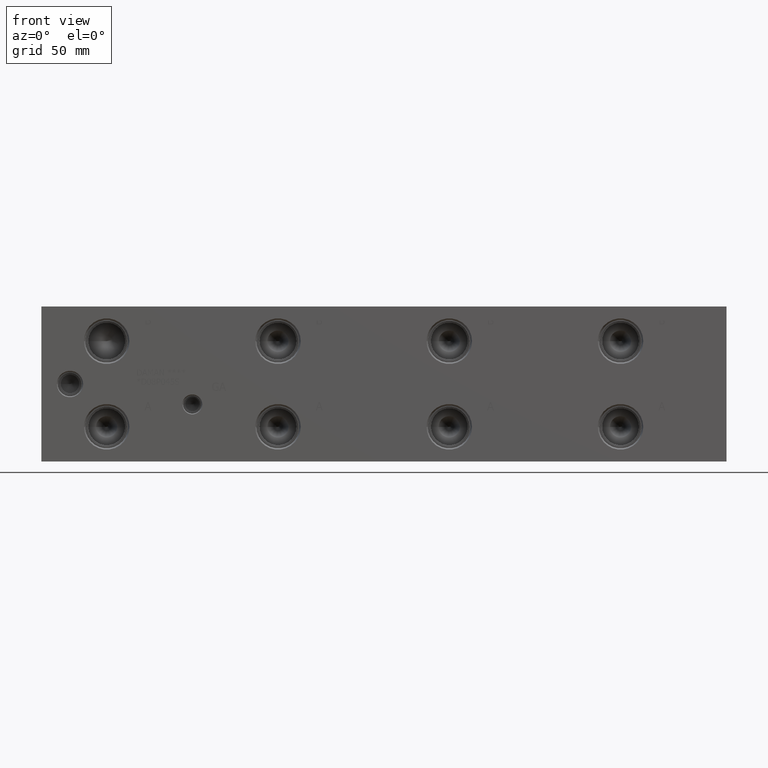
[diagram: clean part render]
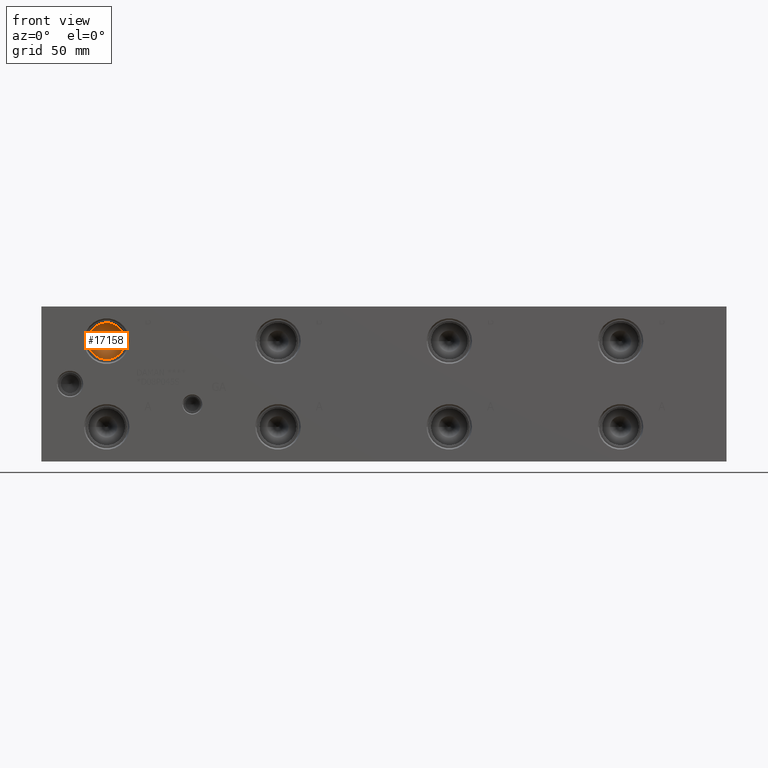
[diagram: same view with one face highlighted and labeled with its STEP entity id]
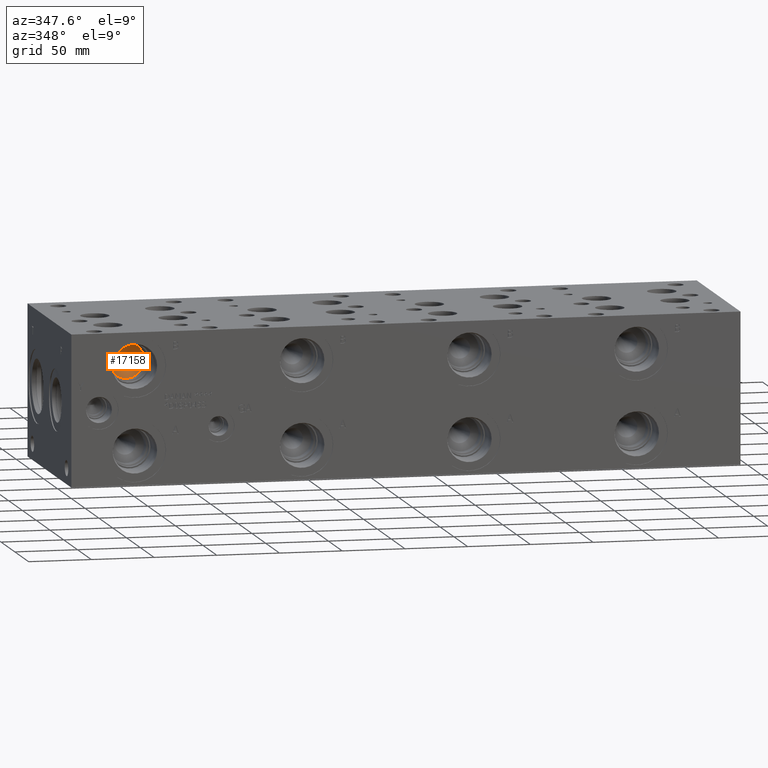
[diagram: same view with one face highlighted and labeled with its STEP entity id]
A machine part, front view. The second image highlights one B-rep face of the part: STEP entity #17158.
A second angle (auxiliary view) of the same face is appended — the face is thin or edge-on in the first view.
In plain terms, the highlighted conical surface has half-angle 60 deg.
Its self-contained STEP definition (entity closure, byte-faithful):
#229=CONICAL_SURFACE('',#18122,7.14375,1.0471975511966);
#701=CIRCLE('',#18123,14.2875);
#702=CIRCLE('',#18124,14.2875);
#2315=FACE_OUTER_BOUND('',#3326,.T.);
#3326=EDGE_LOOP('',(#14310,#14311,#14312,#14313));
#4917=LINE('',#29000,#6376);
#6376=VECTOR('',#21452,7.14375);
#7809=VERTEX_POINT('',#28996);
#7810=VERTEX_POINT('',#28997);
#7811=VERTEX_POINT('',#28999);
#10096=EDGE_CURVE('',#7809,#7810,#701,.T.);
#10097=EDGE_CURVE('',#7810,#7811,#4917,.T.);
#10098=EDGE_CURVE('',#7810,#7809,#702,.T.);
#14310=ORIENTED_EDGE('',*,*,#10096,.T.);
#14311=ORIENTED_EDGE('',*,*,#10097,.T.);
#14312=ORIENTED_EDGE('',*,*,#10097,.F.);
#14313=ORIENTED_EDGE('',*,*,#10098,.T.);
#17158=ADVANCED_FACE('',(#2315),#229,.F.);
#18122=AXIS2_PLACEMENT_3D('',#28995,#21448,#21449);
#18123=AXIS2_PLACEMENT_3D('',#28998,#21450,#21451);
#18124=AXIS2_PLACEMENT_3D('',#29001,#21453,#21454);
#21448=DIRECTION('center_axis',(0.,-1.,0.));
#21449=DIRECTION('ref_axis',(1.,0.,0.));
#21450=DIRECTION('center_axis',(0.,-1.,0.));
#21451=DIRECTION('ref_axis',(1.,0.,0.));
#21452=DIRECTION('',(0.866025403784438,0.5,1.06057523872491E-16));
#21453=DIRECTION('center_axis',(0.,-1.,0.));
#21454=DIRECTION('ref_axis',(1.,0.,0.));
#28995=CARTESIAN_POINT('Origin',(50.8,36.7725059855234,93.6752));
#28996=CARTESIAN_POINT('',(65.0875,32.64806,93.6752));
#28997=CARTESIAN_POINT('',(36.5125,32.64806,93.6752));
#28998=CARTESIAN_POINT('Origin',(50.8,32.64806,93.6752));
#28999=CARTESIAN_POINT('',(50.8,40.8969519710468,93.6752));
#29000=CARTESIAN_POINT('',(43.65625,36.7725059855234,93.6752));
#29001=CARTESIAN_POINT('Origin',(50.8,32.64806,93.6752));